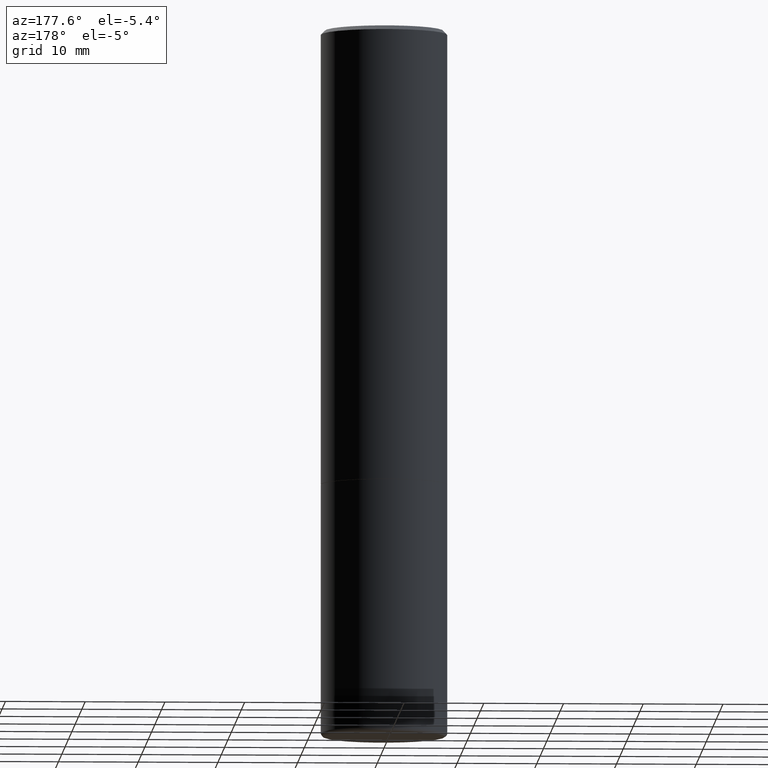
[diagram: clean part render]
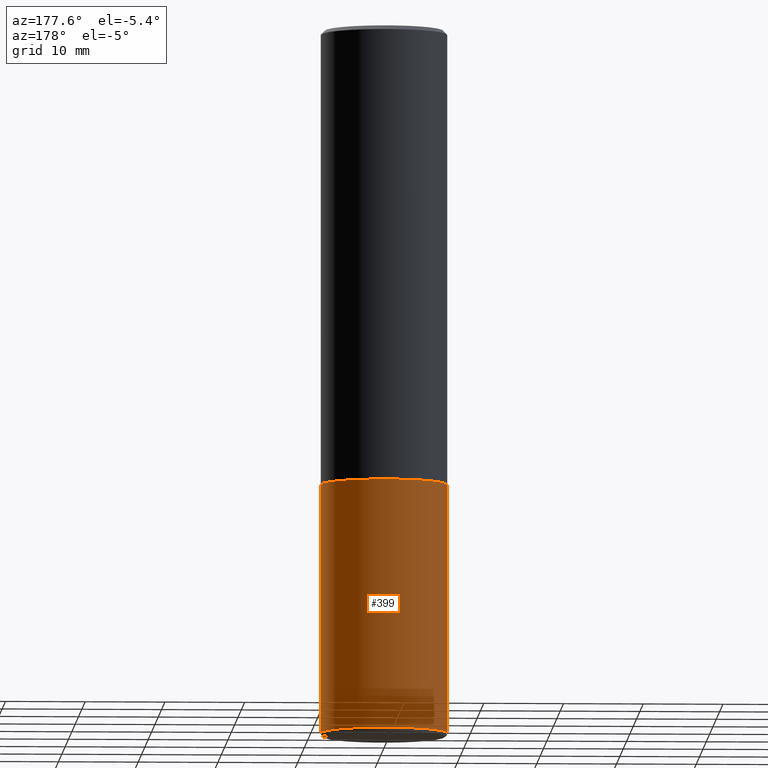
[diagram: same view with one face highlighted and labeled with its STEP entity id]
A machine part, auxiliary view. The second image highlights one B-rep face of the part: STEP entity #399.
In plain terms, the highlighted cylindrical surface (partial cylindrical patch) has radius 7.9375 mm, axis along (-0, 0, 1).
Its self-contained STEP definition (entity closure, byte-faithful):
#21 = EDGE_CURVE ( 'NONE', #358, #416, #158, .T. ) ;
#24 = FACE_OUTER_BOUND ( 'NONE', #425, .T. ) ;
#54 = ORIENTED_EDGE ( 'NONE', *, *, #218, .F. ) ;
#70 = ORIENTED_EDGE ( 'NONE', *, *, #421, .T. ) ;
#77 = CARTESIAN_POINT ( 'NONE',  ( -0.3124999999999998890, 2.220446049250312292E-15, -1.537167215704657391E-29 ) ) ;
#96 = ORIENTED_EDGE ( 'NONE', *, *, #101, .T. ) ;
#101 = EDGE_CURVE ( 'NONE', #424, #416, #249, .T. ) ;
#112 = DIRECTION ( 'NONE',  ( -2.445468806185136877E-29, 3.491481338843145188E-15, 1.000000000000000000 ) ) ;
#119 = DIRECTION ( 'NONE',  ( -2.445468806185136597E-29, 3.491481338843145583E-15, 1.000000000000000000 ) ) ;
#121 = CARTESIAN_POINT ( 'NONE',  ( 0.3125000000000000000, -1.003800884917403364E-14, -2.249999999999999556 ) ) ;
#127 = DIRECTION ( 'NONE',  ( 1.000000000000000000, -6.982962677686269077E-15, 0.000000000000000000 ) ) ;
#139 = AXIS2_PLACEMENT_3D ( 'NONE', #165, #269, #127 ) ;
#147 = VECTOR ( 'NONE', #112, 39.37007874015748143 ) ;
#153 = ORIENTED_EDGE ( 'NONE', *, *, #21, .F. ) ;
#158 = CIRCLE ( 'NONE', #418, 0.3125000000000000000 ) ;
#165 = CARTESIAN_POINT ( 'NONE',  ( 8.510298474124427942E-29, -1.215045075825074504E-14, -3.480027409304908392 ) ) ;
#171 = VERTEX_POINT ( 'NONE', #245 ) ;
#187 = CYLINDRICAL_SURFACE ( 'NONE', #277, 0.3124999999999998890 ) ;
#218 = EDGE_CURVE ( 'NONE', #171, #358, #274, .T. ) ;
#245 = CARTESIAN_POINT ( 'NONE',  ( 0.3124999999999997224, -1.433262659502770023E-14, -3.480027409304908392 ) ) ;
#249 = LINE ( 'NONE', #77, #341 ) ;
#252 = DIRECTION ( 'NONE',  ( -2.445468806185136877E-29, 3.491481338843145188E-15, 1.000000000000000000 ) ) ;
#253 = DIRECTION ( 'NONE',  ( 1.000000000000000000, -6.982962677686266711E-15, 4.876176775795935232E-29 ) ) ;
#269 = DIRECTION ( 'NONE',  ( -2.445468806185136597E-29, 3.491481338843145583E-15, 1.000000000000000000 ) ) ;
#274 = LINE ( 'NONE', #404, #147 ) ;
#277 = AXIS2_PLACEMENT_3D ( 'NONE', #310, #119, #253 ) ;
#280 = DIRECTION ( 'NONE',  ( 1.000000000000000000, -6.982962677686265133E-15, 0.000000000000000000 ) ) ;
#310 = CARTESIAN_POINT ( 'NONE',  ( 0.000000000000000000, 0.000000000000000000, 0.000000000000000000 ) ) ;
#313 = CIRCLE ( 'NONE', #139, 0.3124999999999997224 ) ;
#326 = CARTESIAN_POINT ( 'NONE',  ( -0.3125000000000000000, -7.782695836073597873E-15, -2.249999999999999556 ) ) ;
#341 = VECTOR ( 'NONE', #252, 39.37007874015748143 ) ;
#357 = CARTESIAN_POINT ( 'NONE',  ( -0.3124999999999997224, -7.782695836073599450E-15, -3.480027409304908392 ) ) ;
#358 = VERTEX_POINT ( 'NONE', #121 ) ;
#379 = DIRECTION ( 'NONE',  ( -2.445468806185136597E-29, 3.491481338843145583E-15, 1.000000000000000000 ) ) ;
#399 = ADVANCED_FACE ( 'NONE', ( #24 ), #187, .T. ) ;
#404 = CARTESIAN_POINT ( 'NONE',  ( 0.3124999999999998890, -2.182175836776957558E-15, 1.523805242436229235E-29 ) ) ;
#416 = VERTEX_POINT ( 'NONE', #326 ) ;
#418 = AXIS2_PLACEMENT_3D ( 'NONE', #432, #379, #280 ) ;
#421 = EDGE_CURVE ( 'NONE', #171, #424, #313, .T. ) ;
#424 = VERTEX_POINT ( 'NONE', #357 ) ;
#425 = EDGE_LOOP ( 'NONE', ( #70, #96, #153, #54 ) ) ;
#432 = CARTESIAN_POINT ( 'NONE',  ( 5.502304813916556222E-29, -7.855833012397075293E-15, -2.249999999999999556 ) ) ;